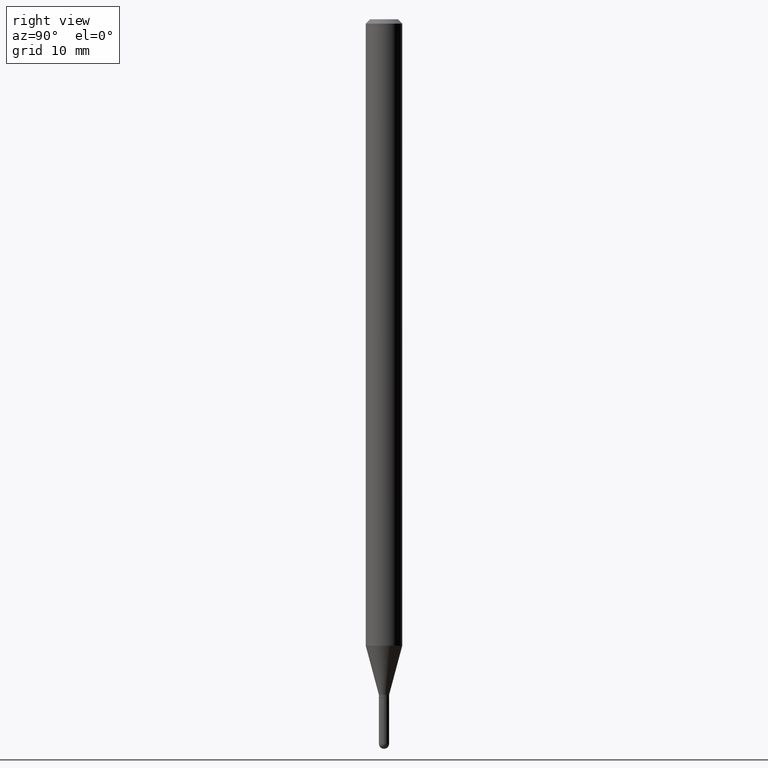
[diagram: clean part render]
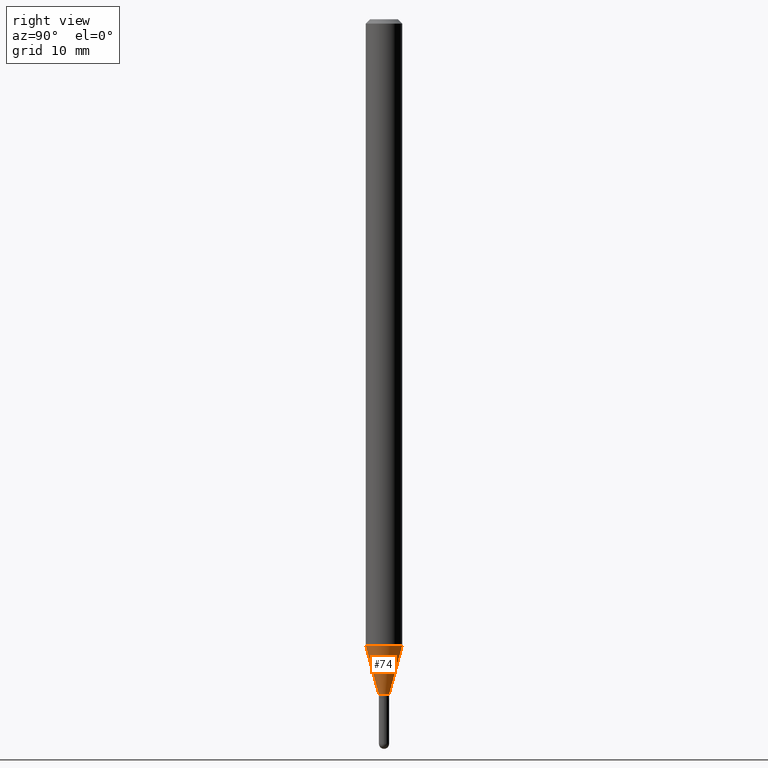
[diagram: same view with one face highlighted and labeled with its STEP entity id]
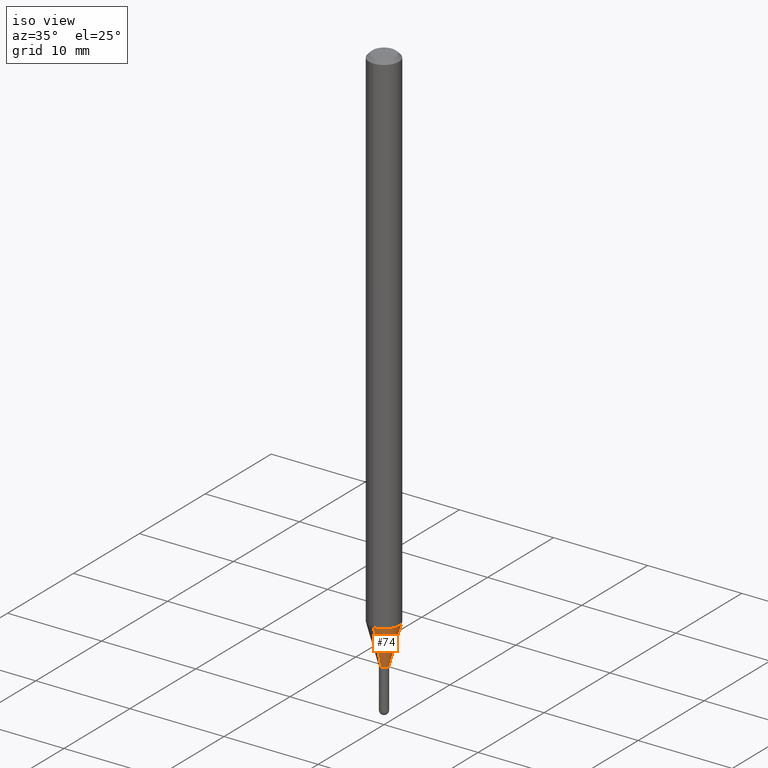
[diagram: same view with one face highlighted and labeled with its STEP entity id]
A machine part, right view. The second image highlights one B-rep face of the part: STEP entity #74.
A second angle (iso view) of the same face is appended — the face is thin or edge-on in the first view.
In plain terms, the highlighted conical surface has half-angle 15 deg.
Its self-contained STEP definition (entity closure, byte-faithful):
#19 = ORIENTED_EDGE ( 'NONE', *, *, #477, .T. ) ;
#23 = DIRECTION ( 'NONE',  ( -1.807323732225329350E-15, -0.2588190451025180194, 0.9659258262890689783 ) ) ;
#49 = FACE_OUTER_BOUND ( 'NONE', #115, .T. ) ;
#72 = CARTESIAN_POINT ( 'NONE',  ( 5.250478507593680395E-29, -7.496532457185947677E-15, -2.147057713659399347 ) ) ;
#74 = ADVANCED_FACE ( 'NONE', ( #49 ), #268, .T. ) ;
#78 = EDGE_CURVE ( 'NONE', #299, #148, #454, .T. ) ;
#80 = LINE ( 'NONE', #194, #494 ) ;
#92 = CARTESIAN_POINT ( 'NONE',  ( 5.661169547400236272E-29, -8.082909242717501543E-15, -2.314999999999999503 ) ) ;
#96 = AXIS2_PLACEMENT_3D ( 'NONE', #92, #443, #327 ) ;
#103 = ORIENTED_EDGE ( 'NONE', *, *, #78, .T. ) ;
#113 = ORIENTED_EDGE ( 'NONE', *, *, #361, .F. ) ;
#115 = EDGE_LOOP ( 'NONE', ( #103, #19, #113, #465 ) ) ;
#142 = VERTEX_POINT ( 'NONE', #325 ) ;
#148 = VERTEX_POINT ( 'NONE', #365 ) ;
#153 = DIRECTION ( 'NONE',  ( 1.839019923739599526E-15, 0.2588190451025248473, 0.9659258262890670910 ) ) ;
#194 = CARTESIAN_POINT ( 'NONE',  ( -1.222018468594506458E-16, -0.01750000000000773853, -2.314999999999999503 ) ) ;
#247 = AXIS2_PLACEMENT_3D ( 'NONE', #512, #322, #482 ) ;
#268 = CONICAL_SURFACE ( 'NONE', #96, 0.01749999999999965472, 0.2617993877991501850 ) ;
#299 = VERTEX_POINT ( 'NONE', #317 ) ;
#317 = CARTESIAN_POINT ( 'NONE',  ( -1.222018468594506458E-16, -0.01750000000000773853, -2.314999999999999503 ) ) ;
#322 = DIRECTION ( 'NONE',  ( -2.445429610108093840E-29, 3.491537469856373273E-15, 1.000000000000000000 ) ) ;
#325 = CARTESIAN_POINT ( 'NONE',  ( -4.364351673553391609E-16, -0.06250000000000749401, -2.147057713659398903 ) ) ;
#327 = DIRECTION ( 'NONE',  ( -6.982962677686265922E-15, -1.000000000000000000, 0.000000000000000000 ) ) ;
#345 = DIRECTION ( 'NONE',  ( -2.445429610108093840E-29, 3.491537469856373273E-15, 1.000000000000000000 ) ) ;
#351 = CIRCLE ( 'NONE', #408, 0.06250000000000000000 ) ;
#361 = EDGE_CURVE ( 'NONE', #142, #427, #351, .T. ) ;
#365 = CARTESIAN_POINT ( 'NONE',  ( 2.842170943040934763E-16, 0.01749999999999157438, -2.314999999999999503 ) ) ;
#408 = AXIS2_PLACEMENT_3D ( 'NONE', #72, #345, #466 ) ;
#416 = CARTESIAN_POINT ( 'NONE',  ( 1.243449787580716799E-16, 0.01749999999999157438, -2.314999999999999503 ) ) ;
#425 = EDGE_CURVE ( 'NONE', #299, #142, #80, .T. ) ;
#427 = VERTEX_POINT ( 'NONE', #509 ) ;
#435 = VECTOR ( 'NONE', #153, 39.37007874015748143 ) ;
#443 = DIRECTION ( 'NONE',  ( -2.445429610108093840E-29, 3.491537469856373273E-15, 1.000000000000000000 ) ) ;
#454 = CIRCLE ( 'NONE', #247, 0.01749999999999965472 ) ;
#465 = ORIENTED_EDGE ( 'NONE', *, *, #425, .F. ) ;
#466 = DIRECTION ( 'NONE',  ( -6.982962677686265922E-15, -1.000000000000000000, 4.370956789862821150E-15 ) ) ;
#477 = EDGE_CURVE ( 'NONE', #148, #427, #505, .T. ) ;
#482 = DIRECTION ( 'NONE',  ( -6.982962677686265922E-15, -1.000000000000000000, 0.000000000000000000 ) ) ;
#494 = VECTOR ( 'NONE', #23, 39.37007874015749564 ) ;
#505 = LINE ( 'NONE', #416, #435 ) ;
#509 = CARTESIAN_POINT ( 'NONE',  ( 4.440892098501148782E-16, 0.06249999999999247824, -2.147057713659399347 ) ) ;
#512 = CARTESIAN_POINT ( 'NONE',  ( 5.661169547400236272E-29, -8.082909242717501543E-15, -2.314999999999999503 ) ) ;